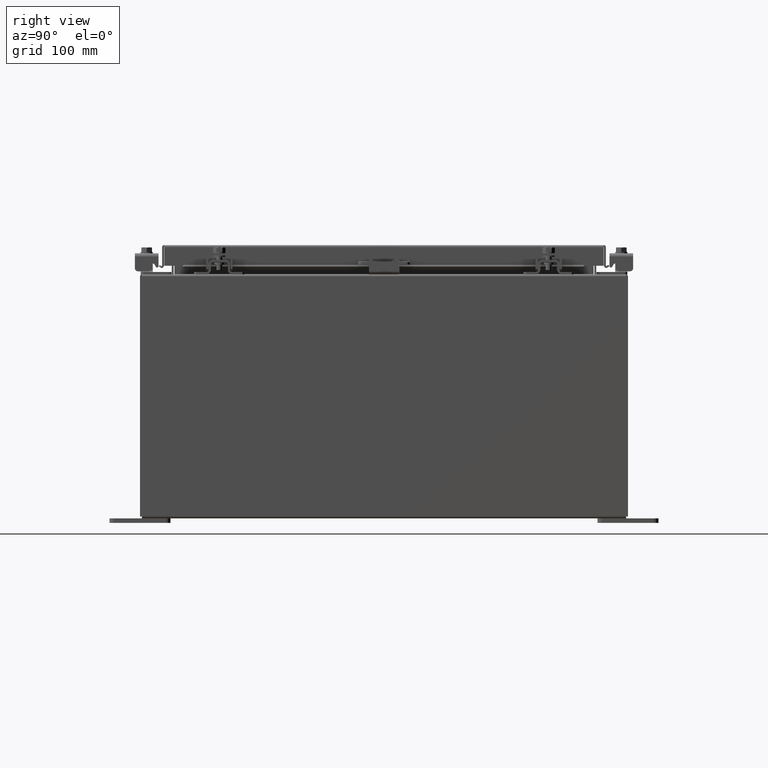
[diagram: clean part render]
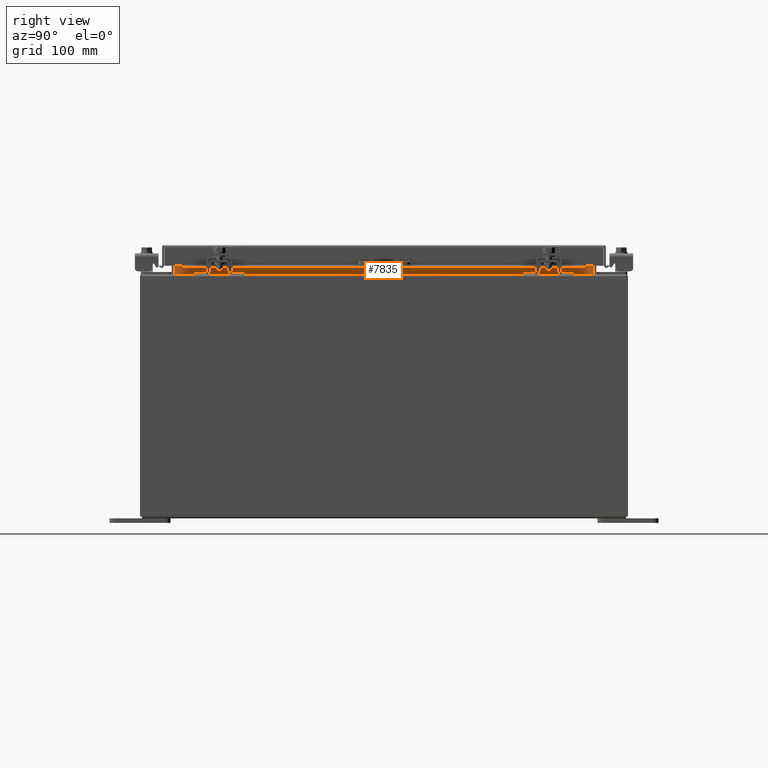
[diagram: same view with one face highlighted and labeled with its STEP entity id]
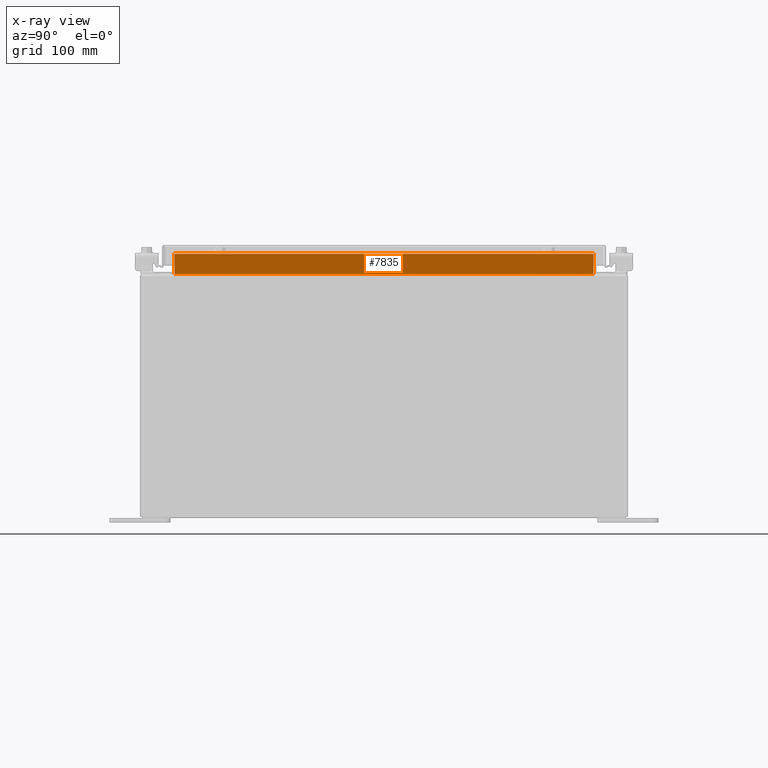
[diagram: x-ray of the same camera — body ghosted, the highlighted face saturated]
A machine part, right view. The second image highlights one B-rep face of the part: STEP entity #7835.
The next image is the same camera in x-ray: the body ghosted, the highlighted face saturated — about 0% of this face is hidden behind the body in this view.
In plain terms, the highlighted planar face has unit normal (1, 0, -0).
Its self-contained STEP definition (entity closure, byte-faithful):
#882 = CARTESIAN_POINT ( 'NONE',  ( 6.699700000000042600, -8.593750000000003600, 10.76290000000000700 ) ) ;
#2308 = ORIENTED_EDGE ( 'NONE', *, *, #22961, .F. ) ;
#2330 = DIRECTION ( 'NONE',  ( -3.542869979895289700E-015, 0.0000000000000000000, -1.000000000000000000 ) ) ;
#3104 = CARTESIAN_POINT ( 'NONE',  ( 6.699700000000040800, 8.593749999999994700, 10.76290000000000700 ) ) ;
#6402 = EDGE_CURVE ( 'NONE', #9492, #10658, #16751, .T. ) ;
#7835 = ADVANCED_FACE ( 'NONE', ( #24537 ), #13589, .T. ) ;
#8366 = LINE ( 'NONE', #8603, #26481 ) ;
#8603 = CARTESIAN_POINT ( 'NONE',  ( 6.699700000000036400, 8.593749999999994700, 9.925300000000007100 ) ) ;
#8693 = CARTESIAN_POINT ( 'NONE',  ( 6.699700000000036400, -8.593750000000005300, 9.938300000000008800 ) ) ;
#8727 = LINE ( 'NONE', #27249, #20075 ) ;
#8946 = AXIS2_PLACEMENT_3D ( 'NONE', #9128, #15975, #2330 ) ;
#9128 = CARTESIAN_POINT ( 'NONE',  ( 6.699700000000002700, 8.519010677830938800E-016, -2.373616600430448300E-014 ) ) ;
#9492 = VERTEX_POINT ( 'NONE', #8693 ) ;
#9644 = ORIENTED_EDGE ( 'NONE', *, *, #28854, .F. ) ;
#10658 = VERTEX_POINT ( 'NONE', #882 ) ;
#11346 = DIRECTION ( 'NONE',  ( 5.086204264567646800E-016, -1.000000000000000000, 3.814653198425735100E-016 ) ) ;
#11844 = VERTEX_POINT ( 'NONE', #3104 ) ;
#12081 = LINE ( 'NONE', #28595, #28087 ) ;
#12350 = EDGE_LOOP ( 'NONE', ( #19212, #9644, #29216, #2308 ) ) ;
#13277 = VERTEX_POINT ( 'NONE', #22414 ) ;
#13589 = PLANE ( 'NONE',  #8946 ) ;
#15076 = DIRECTION ( 'NONE',  ( 0.0000000000000000000, 1.000000000000000000, 0.0000000000000000000 ) ) ;
#15975 = DIRECTION ( 'NONE',  ( 1.000000000000000000, 1.271551066141907300E-016, -3.542869979895289700E-015 ) ) ;
#16751 = LINE ( 'NONE', #23151, #28851 ) ;
#18559 = DIRECTION ( 'NONE',  ( 3.542869979895298400E-015, -0.0000000000000000000, 1.000000000000000000 ) ) ;
#19212 = ORIENTED_EDGE ( 'NONE', *, *, #19351, .F. ) ;
#19351 = EDGE_CURVE ( 'NONE', #11844, #13277, #8366, .T. ) ;
#20075 = VECTOR ( 'NONE', #11346, 39.37007874015748100 ) ;
#22414 = CARTESIAN_POINT ( 'NONE',  ( 6.699700000000036400, 8.593749999999994700, 9.938300000000008800 ) ) ;
#22961 = EDGE_CURVE ( 'NONE', #13277, #9492, #8727, .T. ) ;
#23151 = CARTESIAN_POINT ( 'NONE',  ( 6.699700000000042600, -8.593750000000003600, 10.85060000000001100 ) ) ;
#24473 = DIRECTION ( 'NONE',  ( -3.542869979895289700E-015, -0.0000000000000000000, -1.000000000000000000 ) ) ;
#24537 = FACE_OUTER_BOUND ( 'NONE', #12350, .T. ) ;
#26481 = VECTOR ( 'NONE', #24473, 39.37007874015748100 ) ;
#27249 = CARTESIAN_POINT ( 'NONE',  ( 6.699700000000035500, 8.593749999999994700, 9.938300000000007000 ) ) ;
#28087 = VECTOR ( 'NONE', #15076, 39.37007874015748100 ) ;
#28595 = CARTESIAN_POINT ( 'NONE',  ( 6.699700000000040800, -8.593750000000003600, 10.76290000000000700 ) ) ;
#28851 = VECTOR ( 'NONE', #18559, 39.37007874015748100 ) ;
#28854 = EDGE_CURVE ( 'NONE', #10658, #11844, #12081, .T. ) ;
#29216 = ORIENTED_EDGE ( 'NONE', *, *, #6402, .F. ) ;